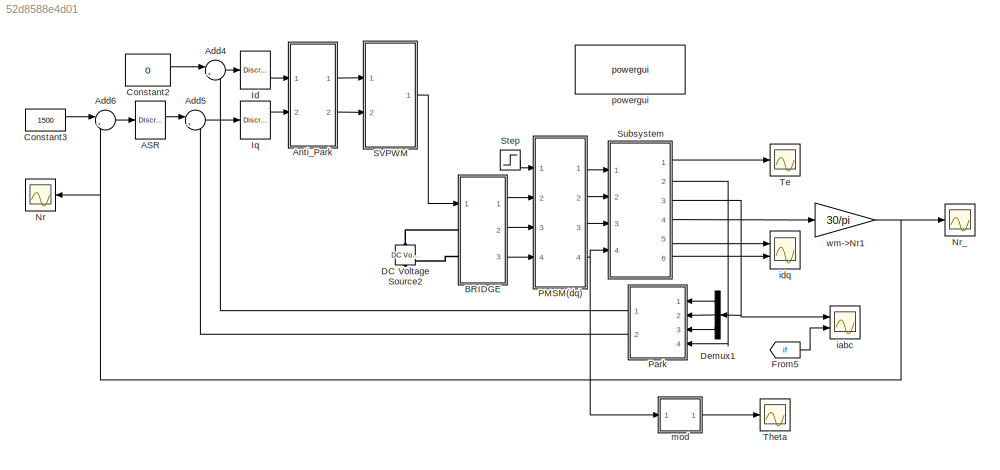
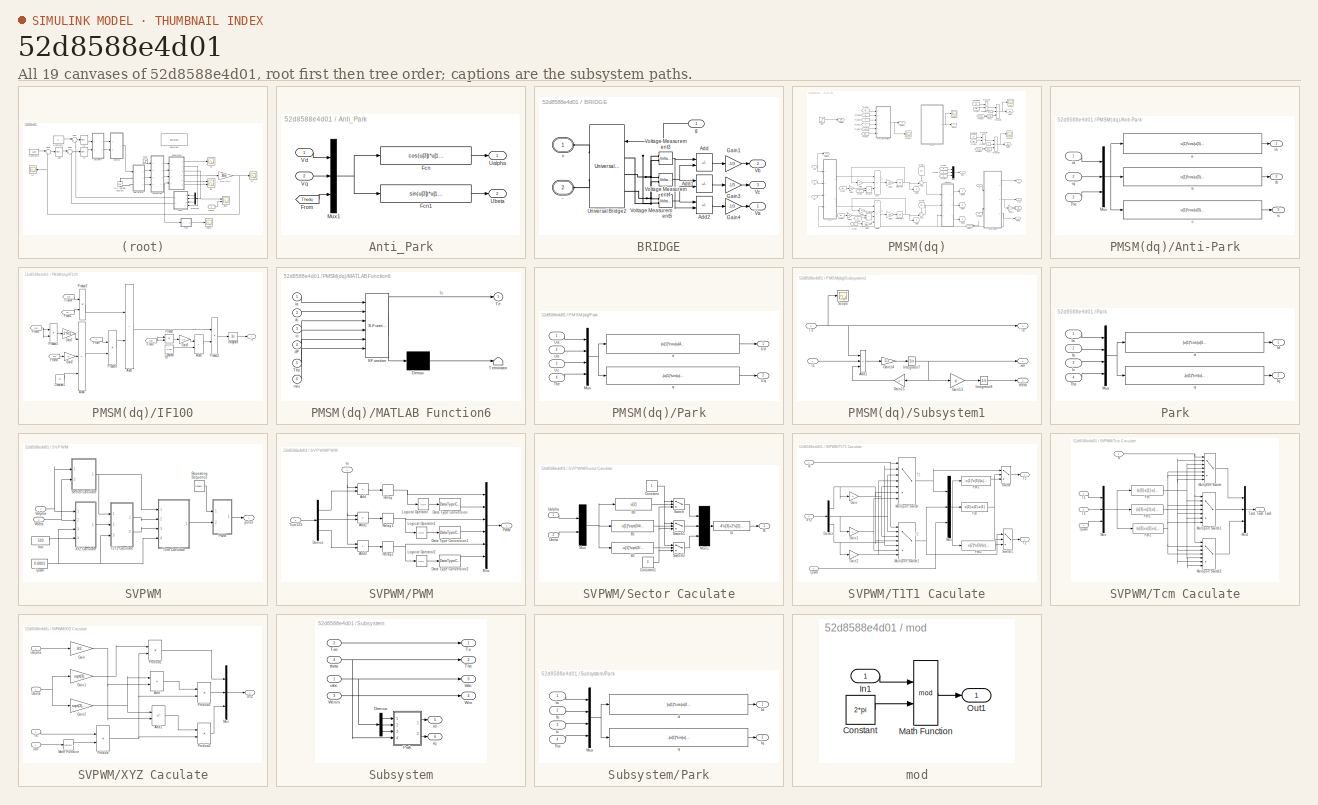
[diagram: thumbnail index - all 19 canvases of the model, root first then tree order]
MODEL slx_52d8588e4d01
KIND model
CONFIG AbsTol = auto
CONFIG EnableMultiTasking = off
CONFIG FixedStep = auto
CONFIG InitFcn = clc\np=2;\nR=3.45;\nLd=9.5e-3;\nLq=12e-3;\nflux=0.55;\nB=0;\nJ=0.0052;\n\nL=(Ld+Lq)/2;\nM=0.5e-3;\n\nRf=0.5;\n\nTL=1e-6;\n\nTs=1e-6;
CONFIG MaxStep = auto
CONFIG MinStep = auto
CONFIG RelTol = 1e-3
CONFIG SampleTimeConstraint = Unconstrained
CONFIG SolverName = VariableStepAuto
CONFIG StartTime = 0.0
CONFIG StopTime = 0.4
BLOCK [Reference] ASR  REF=powerlib_extras/Discrete 
Control Blocks/Discrete
PI Controller
  Ports = [1, 1]
  SourceBlock = powerlib_extras/Discrete \nControl Blocks/Discrete\nPI Controller
  SourceType = Discrete PI Controller
BLOCK [Sum] Add4
  Inputs = |+-
  Ports = [2, 1]
BLOCK [Sum] Add5
  Inputs = |+-
  Ports = [2, 1]
BLOCK [Sum] Add6
  Inputs = |+-
  Ports = [2, 1]
BLOCK [SubSystem] Anti_Park
  Ports = [2, 2]
BLOCK [Fcn] Anti_Park/Fcn
  Expr = cos(u[3])*u[1]-sin(u[3])*u[2]
BLOCK [Fcn] Anti_Park/Fcn1
  Expr = sin(u[3])*u[1]+cos(u[3])*u[2]
BLOCK [From] Anti_Park/From
  GotoTag = Thedq
  TagVisibility = global
BLOCK [Mux] Anti_Park/Mux1
  DisplayOption = bar
  Inputs = 3
  Ports = [3, 1]
BLOCK [Outport] Anti_Park/Ualpha
BLOCK [Outport] Anti_Park/Ubeta
  Port = 2
BLOCK [Inport] Anti_Park/Vd
BLOCK [Inport] Anti_Park/Vq
  Port = 2
BLOCK [SubSystem] BRIDGE
  Ports = [1, 3, 0, 0, 0, 2]
BLOCK [PMIOPort] BRIDGE/+
  Side = Left
  Tag = PMCPort
BLOCK [PMIOPort] BRIDGE/-
  Port = 2
  Side = Left
  Tag = PMCPort
BLOCK [Sum] BRIDGE/Add
  IconShape = rectangular
  Inputs = +-
  Ports = [2, 1]
BLOCK [Sum] BRIDGE/Add1
  IconShape = rectangular
  Inputs = +-
  Ports = [2, 1]
BLOCK [Sum] BRIDGE/Add2
  IconShape = rectangular
  Inputs = +-
  Ports = [2, 1]
BLOCK [Gain] BRIDGE/Gain1
  Gain = -1/3
BLOCK [Gain] BRIDGE/Gain3
  Gain = -1/3
BLOCK [Gain] BRIDGE/Gain4
  Gain = -1/3
BLOCK [Reference] BRIDGE/Universal Bridge2  REF=powerlib/Power Electronics/Universal Bridge
  Ports = [1, 0, 0, 0, 0, 3, 2]
  SourceBlock = powerlib/Power Electronics/Universal Bridge
  SourceType = Universal Bridge
BLOCK [Outport] BRIDGE/Va
BLOCK [Outport] BRIDGE/Vb
  Port = 2
BLOCK [Outport] BRIDGE/Vc
  Port = 3
BLOCK [Reference] BRIDGE/Voltage Measurement3  REF=powerlib/Measurements/Voltage Measurement
  Ports = [0, 1, 0, 0, 0, 2]
  SourceBlock = powerlib/Measurements/Voltage Measurement
  SourceType = Voltage Measurement
BLOCK [Reference] BRIDGE/Voltage Measurement4  REF=powerlib/Measurements/Voltage Measurement
  Ports = [0, 1, 0, 0, 0, 2]
  SourceBlock = powerlib/Measurements/Voltage Measurement
  SourceType = Voltage Measurement
BLOCK [Reference] BRIDGE/Voltage Measurement5  REF=powerlib/Measurements/Voltage Measurement
  Ports = [0, 1, 0, 0, 0, 2]
  SourceBlock = powerlib/Measurements/Voltage Measurement
  SourceType = Voltage Measurement
BLOCK [Inport] BRIDGE/g
BLOCK [Constant] Constant2
  Value = 0
BLOCK [Constant] Constant3
  Value = 1500
BLOCK [Reference] DC Voltage Source2  REF=powerlib/Electrical Sources/DC Voltage Source
  NameLocation = right
  Ports = [0, 0, 0, 0, 0, 1, 1]
  SourceBlock = powerlib/Electrical Sources/DC Voltage Source
  SourceType = DC Voltage Source
BLOCK [Demux] Demux1
  Outputs = 3
  Ports = [1, 3]
BLOCK [From] From5
  GotoTag = if
  TagVisibility = global
BLOCK [Reference] Id  REF=powerlib_extras/Discrete 
Control Blocks/Discrete
PI Controller
  Ports = [1, 1]
  SourceBlock = powerlib_extras/Discrete \nControl Blocks/Discrete\nPI Controller
  SourceType = Discrete PI Controller
BLOCK [Reference] Iq  REF=powerlib_extras/Discrete 
Control Blocks/Discrete
PI Controller
  Ports = [1, 1]
  SourceBlock = powerlib_extras/Discrete \nControl Blocks/Discrete\nPI Controller
  SourceType = Discrete PI Controller
BLOCK [Scope] Nr
  Floating = off
  NumInputPorts = 1
  Ports = [1]
  ScopeSpecificationString = Simulink.scopes.TimeScopeBlockCfg('CurrentConfiguration', extmgr.ConfigurationSet(extmgr.Configuration('Core','General UI',true),extmgr.Configuration('Core','Source UI',true),extmgr.Configuration('Sources','WiredSimulink',true,'DataLogging',true,'DataLoggingVariableName','ScopeData4','DataLoggingSaveFormat','StructureWithTime','DataLoggingDecimation','1','DataLoggingDecimateData',true),extmgr.Conf...<+1876ch>
BLOCK [Scope] Nr_
  Floating = off
  NumInputPorts = 1
  Ports = [1]
  ScopeSpecificationString = Simulink.scopes.TimeScopeBlockCfg('CurrentConfiguration', extmgr.ConfigurationSet(extmgr.Configuration('Core','General UI',true),extmgr.Configuration('Core','Source UI',true),extmgr.Configuration('Sources','WiredSimulink',true,'DataLogging',true,'DataLoggingVariableName','ScopeData2','DataLoggingSaveFormat','StructureWithTime','DataLoggingDecimation','1','DataLoggingDecimateData',true),extmgr.Conf...<+1811ch>
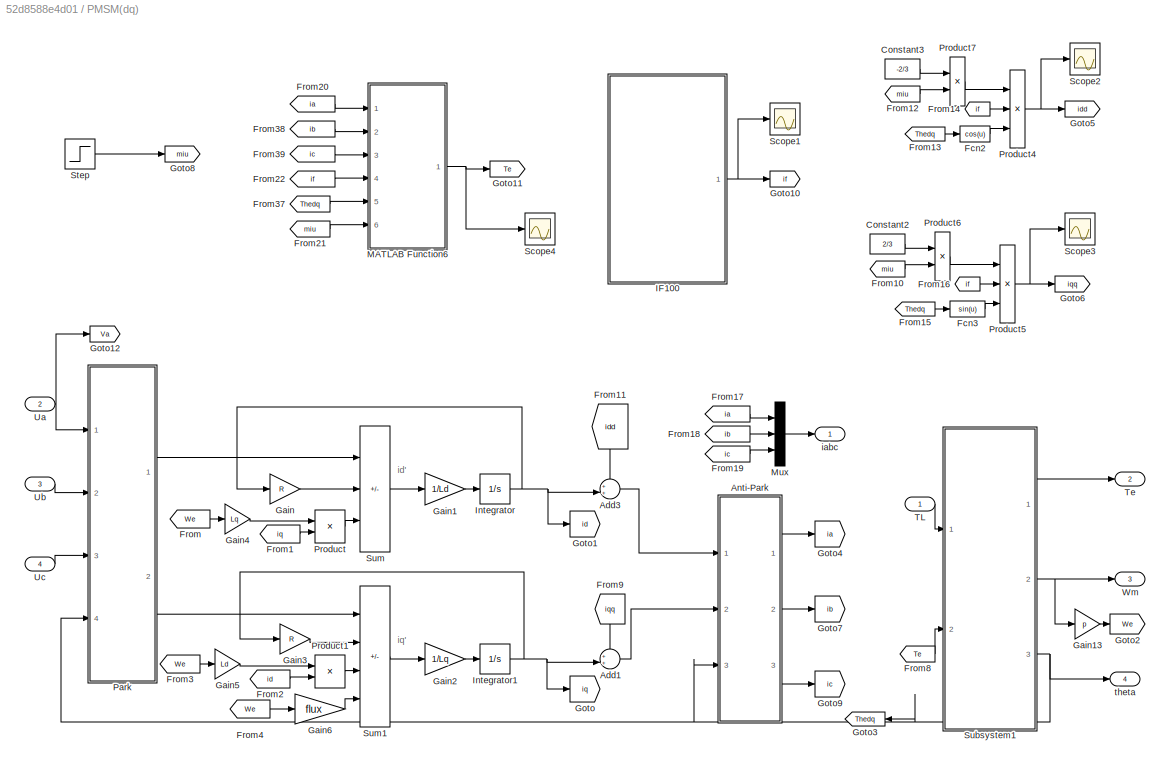
BLOCK [SubSystem] PMSM(dq)
  Ports = [4, 4]
BLOCK [Sum] PMSM(dq)/Add1
  Inputs = ++|
  Ports = [2, 1]
BLOCK [Sum] PMSM(dq)/Add3
  Inputs = ++|
  Ports = [2, 1]
BLOCK [SubSystem] PMSM(dq)/Anti-Park
  Ports = [3, 3]
BLOCK [Mux] PMSM(dq)/Anti-Park/Mux
  DisplayOption = bar
  Inputs = 3
  Ports = [3, 1]
BLOCK [Inport] PMSM(dq)/Anti-Park/The
  Port = 3
BLOCK [Fcn] PMSM(dq)/Anti-Park/a
  Expr = u(1)*cos(u(3))-u(2)*sin(u(3))
BLOCK [Fcn] PMSM(dq)/Anti-Park/b
  Expr = u(1)*cos(u(3)-2/3*pi)-u(2)*sin(u(3)-2/3*pi)
BLOCK [Fcn] PMSM(dq)/Anti-Park/c
  Expr = u(1)*cos(u(3)+2/3*pi)-u(2)*sin(u(3)+2/3*pi)
BLOCK [Outport] PMSM(dq)/Anti-Park/ia
BLOCK [Outport] PMSM(dq)/Anti-Park/ib
  Port = 2
BLOCK [Outport] PMSM(dq)/Anti-Park/ic
  Port = 3
BLOCK [Inport] PMSM(dq)/Anti-Park/id
BLOCK [Inport] PMSM(dq)/Anti-Park/iq
  Port = 2
BLOCK [Constant] PMSM(dq)/Constant2
  Value = 2/3
BLOCK [Constant] PMSM(dq)/Constant3
  Value = -2/3
BLOCK [Fcn] PMSM(dq)/Fcn2
  Expr = cos(u)
BLOCK [Fcn] PMSM(dq)/Fcn3
  Expr = sin(u)
BLOCK [From] PMSM(dq)/From
  GotoTag = We
  TagVisibility = global
BLOCK [From] PMSM(dq)/From1
  GotoTag = iq
  TagVisibility = global
BLOCK [From] PMSM(dq)/From10
  GotoTag = miu
  TagVisibility = global
BLOCK [From] PMSM(dq)/From11
  GotoTag = idd
  NameLocation = left
BLOCK [From] PMSM(dq)/From12
  GotoTag = miu
  TagVisibility = global
BLOCK [From] PMSM(dq)/From13
  GotoTag = Thedq
  TagVisibility = global
BLOCK [From] PMSM(dq)/From14
  GotoTag = if
  TagVisibility = global
BLOCK [From] PMSM(dq)/From15
  GotoTag = Thedq
  TagVisibility = global
BLOCK [From] PMSM(dq)/From16
  GotoTag = if
  TagVisibility = global
BLOCK [From] PMSM(dq)/From17
  GotoTag = ia
  TagVisibility = global
BLOCK [From] PMSM(dq)/From18
  GotoTag = ib
  TagVisibility = global
BLOCK [From] PMSM(dq)/From19
  GotoTag = ic
  TagVisibility = global
BLOCK [From] PMSM(dq)/From2
  GotoTag = id
  TagVisibility = global
BLOCK [From] PMSM(dq)/From20
  GotoTag = ia
  TagVisibility = global
BLOCK [From] PMSM(dq)/From21
  GotoTag = miu
  TagVisibility = global
BLOCK [From] PMSM(dq)/From22
  GotoTag = if
  TagVisibility = global
BLOCK [From] PMSM(dq)/From3
  GotoTag = We
  TagVisibility = global
BLOCK [From] PMSM(dq)/From37
  GotoTag = Thedq
  TagVisibility = global
BLOCK [From] PMSM(dq)/From38
  GotoTag = ib
  TagVisibility = global
BLOCK [From] PMSM(dq)/From39
  GotoTag = ic
  TagVisibility = global
BLOCK [From] PMSM(dq)/From4
  GotoTag = We
  TagVisibility = global
BLOCK [From] PMSM(dq)/From8
  GotoTag = Te
  TagVisibility = global
BLOCK [From] PMSM(dq)/From9
  GotoTag = iqq
  NameLocation = left
BLOCK [Gain] PMSM(dq)/Gain
  Gain = R
BLOCK [Gain] PMSM(dq)/Gain1
  Gain = 1/Ld
BLOCK [Gain] PMSM(dq)/Gain13
  Gain = p
BLOCK [Gain] PMSM(dq)/Gain2
  Gain = 1/Lq
BLOCK [Gain] PMSM(dq)/Gain3
  Gain = R
BLOCK [Gain] PMSM(dq)/Gain4
  Gain = Lq
BLOCK [Gain] PMSM(dq)/Gain5
  Gain = Ld
BLOCK [Gain] PMSM(dq)/Gain6
  Gain = flux
BLOCK [Goto] PMSM(dq)/Goto
  GotoTag = iq
  TagVisibility = global
BLOCK [Goto] PMSM(dq)/Goto1
  GotoTag = id
  TagVisibility = global
BLOCK [Goto] PMSM(dq)/Goto10
  GotoTag = if
  TagVisibility = global
BLOCK [Goto] PMSM(dq)/Goto11
  GotoTag = Te
  TagVisibility = global
BLOCK [Goto] PMSM(dq)/Goto12
  GotoTag = Va
  TagVisibility = global
BLOCK [Goto] PMSM(dq)/Goto2
  GotoTag = We
  TagVisibility = global
BLOCK [Goto] PMSM(dq)/Goto3
  GotoTag = Thedq
  TagVisibility = global
BLOCK [Goto] PMSM(dq)/Goto4
  GotoTag = ia
  TagVisibility = global
BLOCK [Goto] PMSM(dq)/Goto5
  GotoTag = idd
BLOCK [Goto] PMSM(dq)/Goto6
  GotoTag = iqq
BLOCK [Goto] PMSM(dq)/Goto7
  GotoTag = ib
  TagVisibility = global
BLOCK [Goto] PMSM(dq)/Goto8
  GotoTag = miu
  TagVisibility = global
BLOCK [Goto] PMSM(dq)/Goto9
  GotoTag = ic
  TagVisibility = global
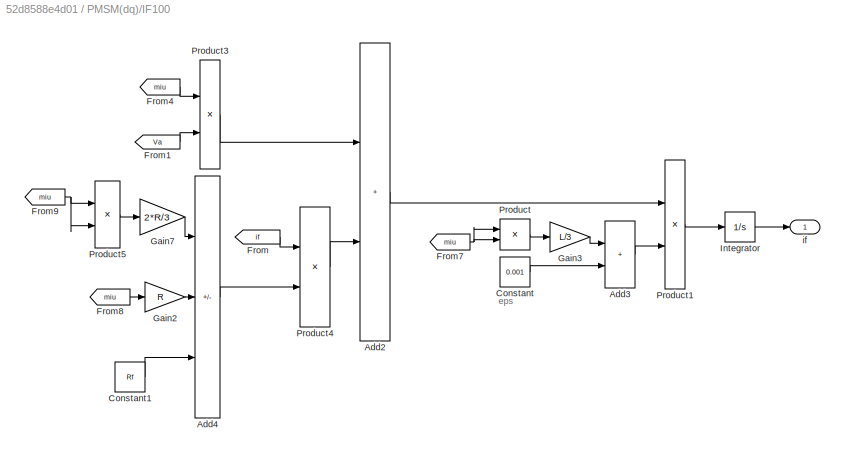
BLOCK [SubSystem] PMSM(dq)/IF100
  Ports = [0, 1]
BLOCK [Sum] PMSM(dq)/IF100/Add2
  IconShape = rectangular
  Ports = [2, 1]
BLOCK [Sum] PMSM(dq)/IF100/Add3
  IconShape = rectangular
  Ports = [2, 1]
BLOCK [Sum] PMSM(dq)/IF100/Add4
  IconShape = rectangular
  Inputs = +--
  Ports = [3, 1]
BLOCK [Constant] PMSM(dq)/IF100/Constant
  Value = 0.001
BLOCK [Constant] PMSM(dq)/IF100/Constant1
  Value = Rf
BLOCK [From] PMSM(dq)/IF100/From
  GotoTag = if
  TagVisibility = global
BLOCK [From] PMSM(dq)/IF100/From1
  GotoTag = Va
  TagVisibility = global
BLOCK [From] PMSM(dq)/IF100/From4
  GotoTag = miu
  TagVisibility = global
BLOCK [From] PMSM(dq)/IF100/From7
  GotoTag = miu
  TagVisibility = global
BLOCK [From] PMSM(dq)/IF100/From8
  GotoTag = miu
  TagVisibility = global
BLOCK [From] PMSM(dq)/IF100/From9
  GotoTag = miu
  TagVisibility = global
BLOCK [Gain] PMSM(dq)/IF100/Gain2
  Gain = R
BLOCK [Gain] PMSM(dq)/IF100/Gain3
  Gain = L/3
BLOCK [Gain] PMSM(dq)/IF100/Gain7
  Gain = 2*R/3
BLOCK [Integrator] PMSM(dq)/IF100/Integrator
  InitialCondition = 0.2
  Ports = [1, 1]
BLOCK [Product] PMSM(dq)/IF100/Product
  Ports = [2, 1]
BLOCK [Product] PMSM(dq)/IF100/Product1
  Inputs = */
  Ports = [2, 1]
BLOCK [Product] PMSM(dq)/IF100/Product3
  Ports = [2, 1]
BLOCK [Product] PMSM(dq)/IF100/Product4
  Ports = [2, 1]
BLOCK [Product] PMSM(dq)/IF100/Product5
  Ports = [2, 1]
BLOCK [Outport] PMSM(dq)/IF100/if
BLOCK [Integrator] PMSM(dq)/Integrator
  Ports = [1, 1]
BLOCK [Integrator] PMSM(dq)/Integrator1
  Ports = [1, 1]
BLOCK [SubSystem] PMSM(dq)/MATLAB Function6
  ErrorFcn = Stateflow.Translate.translate
  PermitHierarchicalResolution = ExplicitOnly
  Ports = [6, 1]
  SFBlockType = MATLAB Function
  TreatAsAtomicUnit = on
BLOCK [Demux] PMSM(dq)/MATLAB Function6/ Demux 
  Outputs = 1
  Ports = [1, 1]
BLOCK [S-Function] PMSM(dq)/MATLAB Function6/ SFunction 
  EnableBusSupport = on
  FunctionName = sf_sfun
  PortCounts = [6 2]
  Ports = [6, 2]
  SFcnIsStateOwnerBlock = off
  SFunctionDeploymentMode = off
  Tag = Stateflow S-Function 1
BLOCK [Terminator] PMSM(dq)/MATLAB Function6/ Terminator 
BLOCK [Outport] PMSM(dq)/MATLAB Function6/Te
BLOCK [Inport] PMSM(dq)/MATLAB Function6/The
  Port = 5
BLOCK [Inport] PMSM(dq)/MATLAB Function6/ia
BLOCK [Inport] PMSM(dq)/MATLAB Function6/ib
  Port = 2
BLOCK [Inport] PMSM(dq)/MATLAB Function6/ic
  Port = 3
BLOCK [Inport] PMSM(dq)/MATLAB Function6/ifF
  Port = 4
BLOCK [Inport] PMSM(dq)/MATLAB Function6/miu
  Port = 6
BLOCK [Mux] PMSM(dq)/Mux
  DisplayOption = bar
  Inputs = 3
  Ports = [3, 1]
BLOCK [SubSystem] PMSM(dq)/Park
  Ports = [4, 2]
BLOCK [Mux] PMSM(dq)/Park/Mux
  DisplayOption = bar
  Ports = [4, 1]
BLOCK [Inport] PMSM(dq)/Park/The
  Port = 4
BLOCK [Inport] PMSM(dq)/Park/Ua
BLOCK [Inport] PMSM(dq)/Park/Ub
  Port = 2
BLOCK [Inport] PMSM(dq)/Park/Uc
  Port = 3
BLOCK [Outport] PMSM(dq)/Park/Ud
BLOCK [Outport] PMSM(dq)/Park/Uq
  Port = 2
BLOCK [Fcn] PMSM(dq)/Park/d
  Expr = (u(1)*cos(u(4))+u(2)*cos(u(4)-2/3*pi)+u(3)*cos(u(4)+2/3*pi))*2/3
BLOCK [Fcn] PMSM(dq)/Park/q
  Expr = -(u(1)*sin(u(4))+u(2)*sin(u(4)-2/3*pi)+u(3)*sin(u(4)+2/3*pi))*2/3
BLOCK [Product] PMSM(dq)/Product
  Ports = [2, 1]
BLOCK [Product] PMSM(dq)/Product1
  Ports = [2, 1]
BLOCK [Product] PMSM(dq)/Product4
  Inputs = 3
  Ports = [3, 1]
BLOCK [Product] PMSM(dq)/Product5
  Inputs = 3
  Ports = [3, 1]
BLOCK [Product] PMSM(dq)/Product6
  Ports = [2, 1]
BLOCK [Product] PMSM(dq)/Product7
  Ports = [2, 1]
BLOCK [Scope] PMSM(dq)/Scope1
  Floating = off
  NumInputPorts = 1
  Ports = [1]
  ScopeSpecificationString = Simulink.scopes.TimeScopeBlockCfg('CurrentConfiguration', extmgr.ConfigurationSet(extmgr.Configuration('Core','General UI',true),extmgr.Configuration('Core','Source UI',true),extmgr.Configuration('Sources','WiredSimulink',true,'DataLoggingVariableName','ScopeData2'),extmgr.Configuration('Visuals','Time Domain',true,'SerializedDisplays',{struct('MinYLimReal','-59.66501','MaxYLimReal','59.63015','YL...<+1474ch>
BLOCK [Scope] PMSM(dq)/Scope2
  Floating = off
  NumInputPorts = 1
  Ports = [1]
  ScopeSpecificationString = Simulink.scopes.TimeScopeBlockCfg('CurrentConfiguration', extmgr.ConfigurationSet(extmgr.Configuration('Core','General UI',true),extmgr.Configuration('Core','Source UI',true),extmgr.Configuration('Sources','WiredSimulink',true,'DataLoggingVariableName','ScopeData5'),extmgr.Configuration('Visuals','Time Domain',true,'SerializedDisplays',{struct('MinYLimReal','-1.18963','MaxYLimReal','0.98001','YLab...<+1421ch>
BLOCK [Scope] PMSM(dq)/Scope3
  Floating = off
  NumInputPorts = 1
  Ports = [1]
  ScopeSpecificationString = Simulink.scopes.TimeScopeBlockCfg('CurrentConfiguration', extmgr.ConfigurationSet(extmgr.Configuration('Core','General UI',true),extmgr.Configuration('Core','Source UI',true),extmgr.Configuration('Sources','WiredSimulink',true,'DataLoggingVariableName','ScopeData6'),extmgr.Configuration('Visuals','Time Domain',true,'SerializedDisplays',{struct('MinYLimReal','-11.15951','MaxYLimReal','2.2818','YLab...<+1475ch>
BLOCK [Scope] PMSM(dq)/Scope4
  Floating = off
  NumInputPorts = 1
  Ports = [1]
  ScopeSpecificationString = Simulink.scopes.TimeScopeBlockCfg('CurrentConfiguration', extmgr.ConfigurationSet(extmgr.Configuration('Core','General UI',true),extmgr.Configuration('Core','Source UI',true),extmgr.Configuration('Sources','WiredSimulink',true,'DataLoggingVariableName','ScopeData1'),extmgr.Configuration('Visuals','Time Domain',true,'SerializedDisplays',{struct('MinYLimReal','-59.66501','MaxYLimReal','59.63015','YL...<+1486ch>
BLOCK [Step] PMSM(dq)/Step
  After = 0.12
  SampleTime = 0
  Time = 0.2
BLOCK [SubSystem] PMSM(dq)/Subsystem1
  Ports = [2, 3]
BLOCK [Sum] PMSM(dq)/Subsystem1/Add1
  IconShape = rectangular
  Inputs = +--
  Ports = [3, 1]
BLOCK [Gain] PMSM(dq)/Subsystem1/Gain13
  Gain = p
BLOCK [Gain] PMSM(dq)/Subsystem1/Gain14
  Gain = 1/J
BLOCK [Gain] PMSM(dq)/Subsystem1/Gain15
  Gain = B
  NameLocation = top
BLOCK [Integrator] PMSM(dq)/Subsystem1/Integrator7
  Ports = [1, 1]
BLOCK [Integrator] PMSM(dq)/Subsystem1/Integrator8
  Ports = [1, 1]
BLOCK [Scope] PMSM(dq)/Subsystem1/Scope
  Floating = off
  NumInputPorts = 1
  Ports = [1]
  ScopeSpecificationString = Simulink.scopes.TimeScopeBlockCfg('CurrentConfiguration', extmgr.ConfigurationSet(extmgr.Configuration('Core','General UI',true),extmgr.Configuration('Core','Source UI',true),extmgr.Configuration('Sources','WiredSimulink',true,'DataLoggingVariableName','ScopeData1'),extmgr.Configuration('Visuals','Time Domain',true,'SerializedDisplays',{struct('MinYLimReal','-9.7704','MaxYLimReal','60.01418','YLab...<+1432ch>
BLOCK [Inport] PMSM(dq)/Subsystem1/T e
  Port = 2
BLOCK [Inport] PMSM(dq)/Subsystem1/TL
BLOCK [Outport] PMSM(dq)/Subsystem1/Te
BLOCK [Outport] PMSM(dq)/Subsystem1/theta
  Port = 3
BLOCK [Outport] PMSM(dq)/Subsystem1/wm
  Port = 2
BLOCK [Sum] PMSM(dq)/Sum
  IconShape = rectangular
  Inputs = +-+
  Ports = [3, 1]
BLOCK [Sum] PMSM(dq)/Sum1
  IconShape = rectangular
  Inputs = +---
  Ports = [4, 1]
BLOCK [Inport] PMSM(dq)/TL 
BLOCK [Outport] PMSM(dq)/Te
  Port = 2
BLOCK [Inport] PMSM(dq)/Ua
  Port = 2
BLOCK [Inport] PMSM(dq)/Ub
  Port = 3
BLOCK [Inport] PMSM(dq)/Uc
  Port = 4
BLOCK [Outport] PMSM(dq)/Wm
  Port = 3
BLOCK [Outport] PMSM(dq)/iabc
BLOCK [Outport] PMSM(dq)/theta
  Port = 4
BLOCK [SubSystem] Park
  Ports = [4, 2]
BLOCK [Inport] Park/Ia
BLOCK [Inport] Park/Ib
  Port = 2
BLOCK [Inport] Park/Ic
  Port = 3
BLOCK [Outport] Park/Id
BLOCK [Outport] Park/Iq
  Port = 2
BLOCK [Mux] Park/Mux
  DisplayOption = bar
  Ports = [4, 1]
BLOCK [Inport] Park/The
  Port = 4
BLOCK [Fcn] Park/d
  Expr = (u(1)*cos(u(4))+u(2)*cos(u(4)-2/3*pi)+u(3)*cos(u(4)+2/3*pi))*2/3
BLOCK [Fcn] Park/q
  Expr = -(u(1)*sin(u(4))+u(2)*sin(u(4)-2/3*pi)+u(3)*sin(u(4)+2/3*pi))*2/3
BLOCK [SubSystem] SVPWM
  Ports = [2, 1]
BLOCK [SubSystem] SVPWM/PWM
  Ports = [2, 1]
BLOCK [Sum] SVPWM/PWM/Add
  IconShape = rectangular
  Inputs = +-
  Ports = [2, 1]
BLOCK [Sum] SVPWM/PWM/Add1
  IconShape = rectangular
  Inputs = +-
  Ports = [2, 1]
BLOCK [Sum] SVPWM/PWM/Add2
  IconShape = rectangular
  Inputs = +-
  Ports = [2, 1]
BLOCK [DataTypeConversion] SVPWM/PWM/Data Type Conversion
  OutDataTypeStr = double
  RndMeth = Floor
  SaturateOnIntegerOverflow = off
BLOCK [DataTypeConversion] SVPWM/PWM/Data Type Conversion1
  OutDataTypeStr = double
  RndMeth = Floor
  SaturateOnIntegerOverflow = off
BLOCK [DataTypeConversion] SVPWM/PWM/Data Type Conversion2
  OutDataTypeStr = double
  RndMeth = Floor
  SaturateOnIntegerOverflow = off
BLOCK [Demux] SVPWM/PWM/Demux
  Outputs = 3
  Ports = [1, 3]
BLOCK [Inport] SVPWM/PWM/In
  NameLocation = right
BLOCK [Logic] SVPWM/PWM/Logical Operator
  AllPortsSameDT = off
  Operator = NOT
  OutDataTypeStr = boolean
  Ports = [1, 1]
BLOCK [Logic] SVPWM/PWM/Logical Operator1
  AllPortsSameDT = off
  Operator = NOT
  OutDataTypeStr = boolean
  Ports = [1, 1]
BLOCK [Logic] SVPWM/PWM/Logical Operator2
  AllPortsSameDT = off
  Operator = NOT
  OutDataTypeStr = boolean
  Ports = [1, 1]
BLOCK [Mux] SVPWM/PWM/Mux
  DisplayOption = bar
  Inputs = 6
  Ports = [6, 1]
BLOCK [Outport] SVPWM/PWM/PWM
BLOCK [Relay] SVPWM/PWM/Relay
  OffSwitchValue = -eps
BLOCK [Relay] SVPWM/PWM/Relay1
  OffSwitchValue = -eps
BLOCK [Relay] SVPWM/PWM/Relay2
  OffSwitchValue = -eps
BLOCK [Inport] SVPWM/PWM/Tcm123
  Port = 2
BLOCK [Reference] SVPWM/Repeating Sequence  REF=simulink/Sources/Repeating
Sequence
  Ports = [0, 1]
  SourceBlock = simulink/Sources/Repeating\nSequence
  SourceType = Repeating table
BLOCK [SubSystem] SVPWM/Sector Caculate
  Ports = [2, 1]
BLOCK [Fcn] SVPWM/Sector Caculate/B0
  Expr = u[2]
BLOCK [Fcn] SVPWM/Sector Caculate/B1
  Expr = u[1]*sqrt(3/4)-0.5*u[2]
BLOCK [Fcn] SVPWM/Sector Caculate/B2
  Expr = -u[1]*sqrt(3/4)-u[2]*0.5
BLOCK [Constant] SVPWM/Sector Caculate/Constant
BLOCK [Constant] SVPWM/Sector Caculate/Constant1
  Value = 0
BLOCK [Mux] SVPWM/Sector Caculate/Mux
  Inputs = 2
  Ports = [2, 1]
BLOCK [Mux] SVPWM/Sector Caculate/Mux1
  Inputs = 3
  Ports = [3, 1]
BLOCK [Fcn] SVPWM/Sector Caculate/N
  Expr = 4*u[3]+2*u[2]+u[1]
BLOCK [Outport] SVPWM/Sector Caculate/N 
BLOCK [Switch] SVPWM/Sector Caculate/Switch
  InputSameDT = off
  SaturateOnIntegerOverflow = off
BLOCK [Switch] SVPWM/Sector Caculate/Switch1
  InputSameDT = off
  SaturateOnIntegerOverflow = off
BLOCK [Switch] SVPWM/Sector Caculate/Switch2
  InputSameDT = off
  SaturateOnIntegerOverflow = off
BLOCK [Inport] SVPWM/Sector Caculate/Ualpha
BLOCK [Inport] SVPWM/Sector Caculate/Ubeta
  Port = 2
BLOCK [SubSystem] SVPWM/T1T1 Caculate
  Ports = [3, 2]
BLOCK [Demux] SVPWM/T1T1 Caculate/Demux
  Outputs = 3
  Ports = [1, 3]
BLOCK [Fcn] SVPWM/T1T1 Caculate/Fcn
  Expr = u(3)-u(2)-u(1)
BLOCK [Fcn] SVPWM/T1T1 Caculate/Fcn1
  Expr = u(1)*u(3)/(u(1)+u(2))
BLOCK [Fcn] SVPWM/T1T1 Caculate/Fcn2
  Expr = u(2)*u(3)/(u(1)+u(2))
BLOCK [Gain] SVPWM/T1T1 Caculate/Gain
  Gain = -1
BLOCK [Gain] SVPWM/T1T1 Caculate/Gain1
  Gain = -1
BLOCK [Gain] SVPWM/T1T1 Caculate/Gain2
  Gain = -1
BLOCK [MultiPortSwitch] SVPWM/T1T1 Caculate/Multiport Switch
  InputSameDT = off
  Inputs = 6
  Ports = [7, 1]
  SaturateOnIntegerOverflow = off
BLOCK [MultiPortSwitch] SVPWM/T1T1 Caculate/Multiport Switch1
  InputSameDT = off
  Inputs = 6
  Ports = [7, 1]
  SaturateOnIntegerOverflow = off
BLOCK [Mux] SVPWM/T1T1 Caculate/Mux
  DisplayOption = bar
  Inputs = 3
  Ports = [3, 1]
BLOCK [Inport] SVPWM/T1T1 Caculate/N
BLOCK [Switch] SVPWM/T1T1 Caculate/Switch
  InputSameDT = off
  SaturateOnIntegerOverflow = off
BLOCK [Switch] SVPWM/T1T1 Caculate/Switch1
  Criteria = u2 > Threshold
  InputSameDT = off
  SaturateOnIntegerOverflow = off
BLOCK [Outport] SVPWM/T1T1 Caculate/T1
BLOCK [Outport] SVPWM/T1T1 Caculate/T2
  Port = 2
BLOCK [Inport] SVPWM/T1T1 Caculate/Tpwm
  Port = 3
BLOCK [Inport] SVPWM/T1T1 Caculate/XYZ
  Port = 2
BLOCK [SubSystem] SVPWM/Tcm Caculate
  Ports = [4, 1]
BLOCK [Fcn] SVPWM/Tcm Caculate/Fcn
  Expr = (u[3]-u[1]-u[2])/4
BLOCK [Fcn] SVPWM/Tcm Caculate/Fcn1
  Expr = (u[3]+u[1]-u[2])/4
BLOCK [Fcn] SVPWM/Tcm Caculate/Fcn2
  Expr = (u[3]+u[2]+u[1])/4
BLOCK [MultiPortSwitch] SVPWM/Tcm Caculate/Multiport Switch
  InputSameDT = off
  Inputs = 6
  Ports = [7, 1]
  SaturateOnIntegerOverflow = off
BLOCK [MultiPortSwitch] SVPWM/Tcm Caculate/Multiport Switch1
  InputSameDT = off
  Inputs = 6
  Ports = [7, 1]
  SaturateOnIntegerOverflow = off
BLOCK [MultiPortSwitch] SVPWM/Tcm Caculate/Multiport Switch2
  InputSameDT = off
  Inputs = 6
  Ports = [7, 1]
  SaturateOnIntegerOverflow = off
BLOCK [Mux] SVPWM/Tcm Caculate/Mux
  DisplayOption = bar
  Inputs = 3
  Ports = [3, 1]
BLOCK [Mux] SVPWM/Tcm Caculate/Mux1
  DisplayOption = bar
  Inputs = 3
  Ports = [3, 1]
BLOCK [Inport] SVPWM/Tcm Caculate/N
BLOCK [Inport] SVPWM/Tcm Caculate/T1
  Port = 2
BLOCK [Inport] SVPWM/Tcm Caculate/T2
  Port = 3
BLOCK [Outport] SVPWM/Tcm Caculate/Tcm1 Tcm2 Tcm3
BLOCK [Inport] SVPWM/Tcm Caculate/Tpwm
  Port = 4
BLOCK [Constant] SVPWM/Tpwm
  Value = 0.0001
BLOCK [Inport] SVPWM/Valpha
BLOCK [Inport] SVPWM/Vbeta
  Port = 2
BLOCK [Constant] SVPWM/Vdc
  Value = 500
BLOCK [SubSystem] SVPWM/XYZ Caculate
  Ports = [4, 1]
BLOCK [Sum] SVPWM/XYZ Caculate/Add
  IconShape = rectangular
  Ports = [2, 1]
BLOCK [Sum] SVPWM/XYZ Caculate/Add1
  IconShape = rectangular
  Inputs = +-
  Ports = [2, 1]
BLOCK [Gain] SVPWM/XYZ Caculate/Gain
  Gain = 3/2
BLOCK [Gain] SVPWM/XYZ Caculate/Gain1
  Gain = sqrt(3)
BLOCK [Gain] SVPWM/XYZ Caculate/Gain2
  Gain = sqrt(3)/2
BLOCK [Math] SVPWM/XYZ Caculate/Math Function
  Operator = reciprocal
  Ports = [1, 1]
  SignedPower = on
BLOCK [Mux] SVPWM/XYZ Caculate/Mux
  DisplayOption = bar
  Inputs = 3
  Ports = [3, 1]
BLOCK [Product] SVPWM/XYZ Caculate/Product
  Ports = [2, 1]
  RndMeth = Zero
BLOCK [Product] SVPWM/XYZ Caculate/Product1
  Ports = [2, 1]
  RndMeth = Zero
BLOCK [Product] SVPWM/XYZ Caculate/Product2
  Ports = [2, 1]
  RndMeth = Zero
BLOCK [Product] SVPWM/XYZ Caculate/Product3
  Ports = [2, 1]
  RndMeth = Zero
BLOCK [Inport] SVPWM/XYZ Caculate/Ts
  Port = 3
BLOCK [Inport] SVPWM/XYZ Caculate/Ualpha
BLOCK [Inport] SVPWM/XYZ Caculate/Ubeta
  Port = 2
BLOCK [Inport] SVPWM/XYZ Caculate/Udc
  Port = 4
BLOCK [Outport] SVPWM/XYZ Caculate/XYZ
BLOCK [Outport] SVPWM/pulse
BLOCK [Step] Step
  After = 20
  Before = 2
  SampleTime = 0
  Time = 0.1
BLOCK [SubSystem] Subsystem
  Ports = [4, 6]
BLOCK [Demux] Subsystem/Demux
  Outputs = 3
  Ports = [1, 3]
BLOCK [Outport] Subsystem/Iabc
  Port = 3
BLOCK [SubSystem] Subsystem/Park
  Ports = [4, 2]
BLOCK [Inport] Subsystem/Park/Ia
BLOCK [Inport] Subsystem/Park/Ib
  Port = 2
BLOCK [Inport] Subsystem/Park/Ic
  Port = 3
BLOCK [Outport] Subsystem/Park/Id
BLOCK [Outport] Subsystem/Park/Iq
  Port = 2
BLOCK [Mux] Subsystem/Park/Mux
  DisplayOption = bar
  Ports = [4, 1]
BLOCK [Inport] Subsystem/Park/The
  Port = 4
BLOCK [Fcn] Subsystem/Park/d
  Expr = (u(1)*cos(u(4))+u(2)*cos(u(4)-2/3*pi)+u(3)*cos(u(4)+2/3*pi))*2/3
BLOCK [Fcn] Subsystem/Park/q
  Expr = -(u(1)*sin(u(4))+u(2)*sin(u(4)-2/3*pi)+u(3)*sin(u(4)+2/3*pi))*2/3
BLOCK [Outport] Subsystem/Te
BLOCK [Inport] Subsystem/Tee
  Port = 2
BLOCK [Outport] Subsystem/The
  Port = 2
BLOCK [Outport] Subsystem/Wm
  Port = 4
BLOCK [Inport] Subsystem/Wmm
  Port = 3
BLOCK [Inport] Subsystem/iabc
BLOCK [Outport] Subsystem/id
  Port = 5
BLOCK [Outport] Subsystem/iq
  Port = 6
BLOCK [Inport] Subsystem/theta
  Port = 4
BLOCK [Scope] Te
  Floating = off
  NumInputPorts = 1
  Ports = [1]
  ScopeSpecificationString = Simulink.scopes.TimeScopeBlockCfg('CurrentConfiguration', extmgr.ConfigurationSet(extmgr.Configuration('Core','General UI',true,'FigureColor',[1 1 1]),extmgr.Configuration('Core','Source UI',true),extmgr.Configuration('Sources','WiredSimulink',true,'DataLoggingVariableName','ScopeData5'),extmgr.Configuration('Visuals','Time Domain',true,'SerializedDisplays',{struct('MinYLimReal','-13.09994','MaxYL...<+1607ch>
BLOCK [Scope] Theta
  Floating = off
  NumInputPorts = 1
  Ports = [1]
  ScopeSpecificationString = Simulink.scopes.TimeScopeBlockCfg('CurrentConfiguration', extmgr.ConfigurationSet(extmgr.Configuration('Core','General UI',true,'FigureColor',[1 1 1]),extmgr.Configuration('Core','Source UI',true),extmgr.Configuration('Sources','WiredSimulink',true,'DataLogging',true,'DataLoggingVariableName','ScopeData1','DataLoggingSaveFormat','StructureWithTime','DataLoggingDecimation','1','DataLoggingDecimateD...<+2783ch>
BLOCK [Scope] iabc
  Floating = off
  NumInputPorts = 2
  Ports = [2]
  ScopeSpecificationString = Simulink.scopes.TimeScopeBlockCfg('CurrentConfiguration', extmgr.ConfigurationSet(extmgr.Configuration('Core','General UI',true,'FigureColor',[1 1 1]),extmgr.Configuration('Core','Source UI',true),extmgr.Configuration('Sources','WiredSimulink',true,'DataLogging',true,'DataLoggingSaveFormat','StructureWithTime','DataLoggingDecimation','1','DataLoggingDecimateData',true,'DataLoggingVariableName','Sc...<+1997ch>
BLOCK [Scope] idq
  Floating = off
  NumInputPorts = 2
  Ports = [2]
  ScopeSpecificationString = Simulink.scopes.TimeScopeBlockCfg('CurrentConfiguration', extmgr.ConfigurationSet(extmgr.Configuration('Core','General UI',true),extmgr.Configuration('Core','Source UI',true),extmgr.Configuration('Sources','WiredSimulink',true,'DataLoggingVariableName','ScopeData7'),extmgr.Configuration('Visuals','Time Domain',true,'SerializedDisplays',{struct('MinYLimReal','-5.02311','MaxYLimReal','36.17036','YLa...<+1469ch>
BLOCK [SubSystem] mod
  Ports = [1, 1]
BLOCK [Constant] mod/Constant
  Value = 2*pi
BLOCK [Inport] mod/In1
BLOCK [Math] mod/Math Function
  NameLocation = top
  Operator = mod
  Ports = [2, 1]
  SignedPower = on
BLOCK [Outport] mod/Out1
BLOCK [Reference] powergui  REF=powerlib/powergui
  Ports = []
  SourceBlock = powerlib/powergui
  SourceType = PSB option menu block
BLOCK [Gain] wm->Nr1
  Gain = 30/pi
ANNOTATION PMSM(dq): id'
ANNOTATION PMSM(dq): iq'
ANNOTATION PMSM(dq)/IF100: eps
ANNOTATION SVPWM/T1T1 Caculate: T1
ANNOTATION SVPWM/T1T1 Caculate: T2
LINE ASR:1 -> Add5:1
LINE Add4:1 -> Id:1
LINE Add5:1 -> Iq:1
LINE Add6:1 -> ASR:1
LINE Anti_Park/Fcn1:1 -> Anti_Park/Ubeta:1
LINE Anti_Park/Fcn:1 -> Anti_Park/Ualpha:1
LINE Anti_Park/From:1 -> Anti_Park/Mux1:3
NET Anti_Park/Mux1:1 -> Anti_Park/Fcn1:1, Anti_Park/Fcn:1
LINE Anti_Park/Vd:1 -> Anti_Park/Mux1:1
LINE Anti_Park/Vq:1 -> Anti_Park/Mux1:2
LINE Anti_Park:1 -> SVPWM:1
LINE Anti_Park:2 -> SVPWM:2
LINE BRIDGE/Add1:1 -> BRIDGE/Gain3:1
LINE BRIDGE/Add2:1 -> BRIDGE/Gain4:1
LINE BRIDGE/Add:1 -> BRIDGE/Gain1:1
LINE BRIDGE/Gain1:1 -> BRIDGE/Vb:1
LINE BRIDGE/Gain3:1 -> BRIDGE/Vc:1
LINE BRIDGE/Gain4:1 -> BRIDGE/Va:1
NET BRIDGE/Voltage Measurement3:1 -> BRIDGE/Add2:2, BRIDGE/Add:1
NET BRIDGE/Voltage Measurement4:1 -> BRIDGE/Add1:1, BRIDGE/Add:2
NET BRIDGE/Voltage Measurement5:1 -> BRIDGE/Add1:2, BRIDGE/Add2:1
LINE BRIDGE/g:1 -> BRIDGE/Universal Bridge2:1
LINE BRIDGE:1 -> PMSM(dq):2
LINE BRIDGE:2 -> PMSM(dq):3
LINE BRIDGE:3 -> PMSM(dq):4
LINE Constant2:1 -> Add4:1
LINE Constant3:1 -> Add6:1
LINE Demux1:1 -> Park:1
LINE Demux1:2 -> Park:2
LINE Demux1:3 -> Park:3
LINE From5:1 -> iabc:2
LINE Id:1 -> Anti_Park:1
LINE Iq:1 -> Anti_Park:2
LINE PMSM(dq)/Add1:1 -> PMSM(dq)/Anti-Park:2
LINE PMSM(dq)/Add3:1 -> PMSM(dq)/Anti-Park:1
NET PMSM(dq)/Anti-Park/Mux:1 -> PMSM(dq)/Anti-Park/a:1, PMSM(dq)/Anti-Park/b:1, PMSM(dq)/Anti-Park/c:1
LINE PMSM(dq)/Anti-Park/The:1 -> PMSM(dq)/Anti-Park/Mux:3
LINE PMSM(dq)/Anti-Park/a:1 -> PMSM(dq)/Anti-Park/ia:1
LINE PMSM(dq)/Anti-Park/b:1 -> PMSM(dq)/Anti-Park/ib:1
LINE PMSM(dq)/Anti-Park/c:1 -> PMSM(dq)/Anti-Park/ic:1
LINE PMSM(dq)/Anti-Park/id:1 -> PMSM(dq)/Anti-Park/Mux:1
LINE PMSM(dq)/Anti-Park/iq:1 -> PMSM(dq)/Anti-Park/Mux:2
LINE PMSM(dq)/Anti-Park:1 -> PMSM(dq)/Goto4:1
LINE PMSM(dq)/Anti-Park:2 -> PMSM(dq)/Goto7:1
LINE PMSM(dq)/Anti-Park:3 -> PMSM(dq)/Goto9:1
LINE PMSM(dq)/Constant2:1 -> PMSM(dq)/Product6:1
LINE PMSM(dq)/Constant3:1 -> PMSM(dq)/Product7:1
LINE PMSM(dq)/Fcn2:1 -> PMSM(dq)/Product4:3
LINE PMSM(dq)/Fcn3:1 -> PMSM(dq)/Product5:3
LINE PMSM(dq)/From10:1 -> PMSM(dq)/Product6:2
LINE PMSM(dq)/From11:1 -> PMSM(dq)/Add3:1
LINE PMSM(dq)/From12:1 -> PMSM(dq)/Product7:2
LINE PMSM(dq)/From13:1 -> PMSM(dq)/Fcn2:1
LINE PMSM(dq)/From14:1 -> PMSM(dq)/Product4:2
LINE PMSM(dq)/From15:1 -> PMSM(dq)/Fcn3:1
LINE PMSM(dq)/From16:1 -> PMSM(dq)/Product5:2
LINE PMSM(dq)/From17:1 -> PMSM(dq)/Mux:1
LINE PMSM(dq)/From18:1 -> PMSM(dq)/Mux:2
LINE PMSM(dq)/From19:1 -> PMSM(dq)/Mux:3
LINE PMSM(dq)/From1:1 -> PMSM(dq)/Product:2
LINE PMSM(dq)/From20:1 -> PMSM(dq)/MATLAB Function6:1
LINE PMSM(dq)/From21:1 -> PMSM(dq)/MATLAB Function6:6
LINE PMSM(dq)/From22:1 -> PMSM(dq)/MATLAB Function6:4
LINE PMSM(dq)/From2:1 -> PMSM(dq)/Product1:2
LINE PMSM(dq)/From37:1 -> PMSM(dq)/MATLAB Function6:5
LINE PMSM(dq)/From38:1 -> PMSM(dq)/MATLAB Function6:2
LINE PMSM(dq)/From39:1 -> PMSM(dq)/MATLAB Function6:3
LINE PMSM(dq)/From3:1 -> PMSM(dq)/Gain5:1
LINE PMSM(dq)/From4:1 -> PMSM(dq)/Gain6:1
LINE PMSM(dq)/From8:1 -> PMSM(dq)/Subsystem1:2
LINE PMSM(dq)/From9:1 -> PMSM(dq)/Add1:1
LINE PMSM(dq)/From:1 -> PMSM(dq)/Gain4:1
LINE PMSM(dq)/Gain13:1 -> PMSM(dq)/Goto2:1
LINE PMSM(dq)/Gain1:1 -> PMSM(dq)/Integrator:1
LINE PMSM(dq)/Gain2:1 -> PMSM(dq)/Integrator1:1
LINE PMSM(dq)/Gain3:1 -> PMSM(dq)/Sum1:2
LINE PMSM(dq)/Gain4:1 -> PMSM(dq)/Product:1
LINE PMSM(dq)/Gain5:1 -> PMSM(dq)/Product1:1
LINE PMSM(dq)/Gain6:1 -> PMSM(dq)/Sum1:4
LINE PMSM(dq)/Gain:1 -> PMSM(dq)/Sum:2
LINE PMSM(dq)/IF100/Add2:1 -> PMSM(dq)/IF100/Product1:1
LINE PMSM(dq)/IF100/Add3:1 -> PMSM(dq)/IF100/Product1:2
LINE PMSM(dq)/IF100/Add4:1 -> PMSM(dq)/IF100/Product4:2
LINE PMSM(dq)/IF100/Constant1:1 -> PMSM(dq)/IF100/Add4:3
LINE PMSM(dq)/IF100/Constant:1 -> PMSM(dq)/IF100/Add3:2
LINE PMSM(dq)/IF100/From1:1 -> PMSM(dq)/IF100/Product3:2
LINE PMSM(dq)/IF100/From4:1 -> PMSM(dq)/IF100/Product3:1
NET PMSM(dq)/IF100/From7:1 -> PMSM(dq)/IF100/Product:1, PMSM(dq)/IF100/Product:2
LINE PMSM(dq)/IF100/From8:1 -> PMSM(dq)/IF100/Gain2:1
NET PMSM(dq)/IF100/From9:1 -> PMSM(dq)/IF100/Product5:1, PMSM(dq)/IF100/Product5:2
LINE PMSM(dq)/IF100/From:1 -> PMSM(dq)/IF100/Product4:1
LINE PMSM(dq)/IF100/Gain2:1 -> PMSM(dq)/IF100/Add4:2
LINE PMSM(dq)/IF100/Gain3:1 -> PMSM(dq)/IF100/Add3:1
LINE PMSM(dq)/IF100/Gain7:1 -> PMSM(dq)/IF100/Add4:1
LINE PMSM(dq)/IF100/Integrator:1 -> PMSM(dq)/IF100/if:1
LINE PMSM(dq)/IF100/Product1:1 -> PMSM(dq)/IF100/Integrator:1
LINE PMSM(dq)/IF100/Product3:1 -> PMSM(dq)/IF100/Add2:1
LINE PMSM(dq)/IF100/Product4:1 -> PMSM(dq)/IF100/Add2:2
LINE PMSM(dq)/IF100/Product5:1 -> PMSM(dq)/IF100/Gain7:1
LINE PMSM(dq)/IF100/Product:1 -> PMSM(dq)/IF100/Gain3:1
NET PMSM(dq)/IF100:1 -> PMSM(dq)/Goto10:1, PMSM(dq)/Scope1:1
NET PMSM(dq)/Integrator1:1 -> PMSM(dq)/Add1:2, PMSM(dq)/Gain3:1, PMSM(dq)/Goto:1
NET PMSM(dq)/Integrator:1 -> PMSM(dq)/Add3:2, PMSM(dq)/Gain:1, PMSM(dq)/Goto1:1
NET PMSM(dq)/MATLAB Function6:1 -> PMSM(dq)/Goto11:1, PMSM(dq)/Scope4:1
LINE PMSM(dq)/Mux:1 -> PMSM(dq)/iabc:1
NET PMSM(dq)/Park/Mux:1 -> PMSM(dq)/Park/d:1, PMSM(dq)/Park/q:1
LINE PMSM(dq)/Park/The:1 -> PMSM(dq)/Park/Mux:4
LINE PMSM(dq)/Park/Ua:1 -> PMSM(dq)/Park/Mux:1
LINE PMSM(dq)/Park/Ub:1 -> PMSM(dq)/Park/Mux:2
LINE PMSM(dq)/Park/Uc:1 -> PMSM(dq)/Park/Mux:3
LINE PMSM(dq)/Park/d:1 -> PMSM(dq)/Park/Ud:1
LINE PMSM(dq)/Park/q:1 -> PMSM(dq)/Park/Uq:1
LINE PMSM(dq)/Park:1 -> PMSM(dq)/Sum:1
LINE PMSM(dq)/Park:2 -> PMSM(dq)/Sum1:1
LINE PMSM(dq)/Product1:1 -> PMSM(dq)/Sum1:3
NET PMSM(dq)/Product4:1 -> PMSM(dq)/Goto5:1, PMSM(dq)/Scope2:1
NET PMSM(dq)/Product5:1 -> PMSM(dq)/Goto6:1, PMSM(dq)/Scope3:1
LINE PMSM(dq)/Product6:1 -> PMSM(dq)/Product5:1
LINE PMSM(dq)/Product7:1 -> PMSM(dq)/Product4:1
LINE PMSM(dq)/Product:1 -> PMSM(dq)/Sum:3
LINE PMSM(dq)/Step:1 -> PMSM(dq)/Goto8:1
LINE PMSM(dq)/Subsystem1/Add1:1 -> PMSM(dq)/Subsystem1/Gain14:1
LINE PMSM(dq)/Subsystem1/Gain13:1 -> PMSM(dq)/Subsystem1/Integrator8:1
LINE PMSM(dq)/Subsystem1/Gain14:1 -> PMSM(dq)/Subsystem1/Integrator7:1
LINE PMSM(dq)/Subsystem1/Gain15:1 -> PMSM(dq)/Subsystem1/Add1:3
NET PMSM(dq)/Subsystem1/Integrator7:1 -> PMSM(dq)/Subsystem1/Gain13:1, PMSM(dq)/Subsystem1/Gain15:1, PMSM(dq)/Subsystem1/wm:1
LINE PMSM(dq)/Subsystem1/Integrator8:1 -> PMSM(dq)/Subsystem1/theta:1
NET PMSM(dq)/Subsystem1/T e:1 -> PMSM(dq)/Subsystem1/Add1:1, PMSM(dq)/Subsystem1/Scope:1, PMSM(dq)/Subsystem1/Te:1
LINE PMSM(dq)/Subsystem1/TL:1 -> PMSM(dq)/Subsystem1/Add1:2
LINE PMSM(dq)/Subsystem1:1 -> PMSM(dq)/Te:1
NET PMSM(dq)/Subsystem1:2 -> PMSM(dq)/Gain13:1, PMSM(dq)/Wm:1
NET PMSM(dq)/Subsystem1:3 -> PMSM(dq)/Anti-Park:3, PMSM(dq)/Goto3:1, PMSM(dq)/Park:4, PMSM(dq)/theta:1
LINE PMSM(dq)/Sum1:1 -> PMSM(dq)/Gain2:1
LINE PMSM(dq)/Sum:1 -> PMSM(dq)/Gain1:1
LINE PMSM(dq)/TL :1 -> PMSM(dq)/Subsystem1:1
NET PMSM(dq)/Ua:1 -> PMSM(dq)/Goto12:1, PMSM(dq)/Park:1
LINE PMSM(dq)/Ub:1 -> PMSM(dq)/Park:2
LINE PMSM(dq)/Uc:1 -> PMSM(dq)/Park:3
LINE PMSM(dq):1 -> Subsystem:1
LINE PMSM(dq):2 -> Subsystem:2
LINE PMSM(dq):3 -> Subsystem:3
NET PMSM(dq):4 -> Subsystem:4, mod:1
LINE Park/Ia:1 -> Park/Mux:1
LINE Park/Ib:1 -> Park/Mux:2
LINE Park/Ic:1 -> Park/Mux:3
NET Park/Mux:1 -> Park/d:1, Park/q:1
LINE Park/The:1 -> Park/Mux:4
LINE Park/d:1 -> Park/Id:1
LINE Park/q:1 -> Park/Iq:1
LINE Park:1 -> Add4:2
LINE Park:2 -> Add5:2
LINE SVPWM/PWM/Add1:1 -> SVPWM/PWM/Relay1:1
LINE SVPWM/PWM/Add2:1 -> SVPWM/PWM/Relay2:1
LINE SVPWM/PWM/Add:1 -> SVPWM/PWM/Relay:1
LINE SVPWM/PWM/Data Type Conversion1:1 -> SVPWM/PWM/Mux:4
LINE SVPWM/PWM/Data Type Conversion2:1 -> SVPWM/PWM/Mux:6
LINE SVPWM/PWM/Data Type Conversion:1 -> SVPWM/PWM/Mux:2
LINE SVPWM/PWM/Demux:1 -> SVPWM/PWM/Add:2
LINE SVPWM/PWM/Demux:2 -> SVPWM/PWM/Add1:2
LINE SVPWM/PWM/Demux:3 -> SVPWM/PWM/Add2:2
NET SVPWM/PWM/In:1 -> SVPWM/PWM/Add1:1, SVPWM/PWM/Add2:1, SVPWM/PWM/Add:1
LINE SVPWM/PWM/Logical Operator1:1 -> SVPWM/PWM/Data Type Conversion1:1
LINE SVPWM/PWM/Logical Operator2:1 -> SVPWM/PWM/Data Type Conversion2:1
LINE SVPWM/PWM/Logical Operator:1 -> SVPWM/PWM/Data Type Conversion:1
LINE SVPWM/PWM/Mux:1 -> SVPWM/PWM/PWM:1
NET SVPWM/PWM/Relay1:1 -> SVPWM/PWM/Logical Operator1:1, SVPWM/PWM/Mux:3
NET SVPWM/PWM/Relay2:1 -> SVPWM/PWM/Logical Operator2:1, SVPWM/PWM/Mux:5
NET SVPWM/PWM/Relay:1 -> SVPWM/PWM/Logical Operator:1, SVPWM/PWM/Mux:1
LINE SVPWM/PWM/Tcm123:1 -> SVPWM/PWM/Demux:1
LINE SVPWM/PWM:1 -> SVPWM/pulse:1
LINE SVPWM/Repeating Sequence:1 -> SVPWM/PWM:1
LINE SVPWM/Sector Caculate/B0:1 -> SVPWM/Sector Caculate/Switch:2
LINE SVPWM/Sector Caculate/B1:1 -> SVPWM/Sector Caculate/Switch1:2
LINE SVPWM/Sector Caculate/B2:1 -> SVPWM/Sector Caculate/Switch2:2
NET SVPWM/Sector Caculate/Constant1:1 -> SVPWM/Sector Caculate/Switch1:3, SVPWM/Sector Caculate/Switch2:3, SVPWM/Sector Caculate/Switch:3
NET SVPWM/Sector Caculate/Constant:1 -> SVPWM/Sector Caculate/Switch1:1, SVPWM/Sector Caculate/Switch2:1, SVPWM/Sector Caculate/Switch:1
LINE SVPWM/Sector Caculate/Mux1:1 -> SVPWM/Sector Caculate/N:1
NET SVPWM/Sector Caculate/Mux:1 -> SVPWM/Sector Caculate/B0:1, SVPWM/Sector Caculate/B1:1, SVPWM/Sector Caculate/B2:1
LINE SVPWM/Sector Caculate/N:1 -> SVPWM/Sector Caculate/N :1
LINE SVPWM/Sector Caculate/Switch1:1 -> SVPWM/Sector Caculate/Mux1:2
LINE SVPWM/Sector Caculate/Switch2:1 -> SVPWM/Sector Caculate/Mux1:3
LINE SVPWM/Sector Caculate/Switch:1 -> SVPWM/Sector Caculate/Mux1:1
LINE SVPWM/Sector Caculate/Ualpha:1 -> SVPWM/Sector Caculate/Mux:1
LINE SVPWM/Sector Caculate/Ubeta:1 -> SVPWM/Sector Caculate/Mux:2
NET SVPWM/Sector Caculate:1 -> SVPWM/T1T1 Caculate:1, SVPWM/Tcm Caculate:1
NET SVPWM/T1T1 Caculate/Demux:1 -> SVPWM/T1T1 Caculate/Gain:1, SVPWM/T1T1 Caculate/Multiport Switch1:4, SVPWM/T1T1 Caculate/Multiport Switch:6
NET SVPWM/T1T1 Caculate/Demux:2 -> SVPWM/T1T1 Caculate/Gain1:1, SVPWM/T1T1 Caculate/Multiport Switch1:2, SVPWM/T1T1 Caculate/Multiport Switch:3
NET SVPWM/T1T1 Caculate/Demux:3 -> SVPWM/T1T1 Caculate/Gain2:1, SVPWM/T1T1 Caculate/Multiport Switch1:5, SVPWM/T1T1 Caculate/Multiport Switch:2
LINE SVPWM/T1T1 Caculate/Fcn1:1 -> SVPWM/T1T1 Caculate/Switch:3
LINE SVPWM/T1T1 Caculate/Fcn2:1 -> SVPWM/T1T1 Caculate/Switch1:3
NET SVPWM/T1T1 Caculate/Fcn:1 -> SVPWM/T1T1 Caculate/Switch1:2, SVPWM/T1T1 Caculate/Switch:2
NET SVPWM/T1T1 Caculate/Gain1:1 -> SVPWM/T1T1 Caculate/Multiport Switch1:6, SVPWM/T1T1 Caculate/Multiport Switch:7
NET SVPWM/T1T1 Caculate/Gain2:1 -> SVPWM/T1T1 Caculate/Multiport Switch1:7, SVPWM/T1T1 Caculate/Multiport Switch:4
NET SVPWM/T1T1 Caculate/Gain:1 -> SVPWM/T1T1 Caculate/Multiport Switch1:3, SVPWM/T1T1 Caculate/Multiport Switch:5
NET SVPWM/T1T1 Caculate/Multiport Switch1:1 -> SVPWM/T1T1 Caculate/Mux:2, SVPWM/T1T1 Caculate/Switch1:1
NET SVPWM/T1T1 Caculate/Multiport Switch:1 -> SVPWM/T1T1 Caculate/Mux:1, SVPWM/T1T1 Caculate/Switch:1
NET SVPWM/T1T1 Caculate/Mux:1 -> SVPWM/T1T1 Caculate/Fcn1:1, SVPWM/T1T1 Caculate/Fcn2:1, SVPWM/T1T1 Caculate/Fcn:1
NET SVPWM/T1T1 Caculate/N:1 -> SVPWM/T1T1 Caculate/Multiport Switch1:1, SVPWM/T1T1 Caculate/Multiport Switch:1
LINE SVPWM/T1T1 Caculate/Switch1:1 -> SVPWM/T1T1 Caculate/T2:1
LINE SVPWM/T1T1 Caculate/Switch:1 -> SVPWM/T1T1 Caculate/T1:1
LINE SVPWM/T1T1 Caculate/Tpwm:1 -> SVPWM/T1T1 Caculate/Mux:3
LINE SVPWM/T1T1 Caculate/XYZ:1 -> SVPWM/T1T1 Caculate/Demux:1
LINE SVPWM/T1T1 Caculate:1 -> SVPWM/Tcm Caculate:2
LINE SVPWM/T1T1 Caculate:2 -> SVPWM/Tcm Caculate:3
NET SVPWM/Tcm Caculate/Fcn1:1 -> SVPWM/Tcm Caculate/Multiport Switch1:4, SVPWM/Tcm Caculate/Multiport Switch1:5, SVPWM/Tcm Caculate/Multiport Switch2:3, SVPWM/Tcm Caculate/Multiport Switch2:6, SVPWM/Tcm Caculate/Multiport Switch:2, SVPWM/Tcm Caculate/Multiport Switch:7
NET SVPWM/Tcm Caculate/Fcn2:1 -> SVPWM/Tcm Caculate/Multiport Switch1:3, SVPWM/Tcm Caculate/Multiport Switch1:7, SVPWM/Tcm Caculate/Multiport Switch2:2, SVPWM/Tcm Caculate/Multiport Switch2:4, SVPWM/Tcm Caculate/Multiport Switch:5, SVPWM/Tcm Caculate/Multiport Switch:6
NET SVPWM/Tcm Caculate/Fcn:1 -> SVPWM/Tcm Caculate/Multiport Switch1:2, SVPWM/Tcm Caculate/Multiport Switch1:6, SVPWM/Tcm Caculate/Multiport Switch2:5, SVPWM/Tcm Caculate/Multiport Switch2:7, SVPWM/Tcm Caculate/Multiport Switch:3, SVPWM/Tcm Caculate/Multiport Switch:4
LINE SVPWM/Tcm Caculate/Multiport Switch1:1 -> SVPWM/Tcm Caculate/Mux1:2
LINE SVPWM/Tcm Caculate/Multiport Switch2:1 -> SVPWM/Tcm Caculate/Mux1:3
LINE SVPWM/Tcm Caculate/Multiport Switch:1 -> SVPWM/Tcm Caculate/Mux1:1
LINE SVPWM/Tcm Caculate/Mux1:1 -> SVPWM/Tcm Caculate/Tcm1 Tcm2 Tcm3:1
NET SVPWM/Tcm Caculate/Mux:1 -> SVPWM/Tcm Caculate/Fcn1:1, SVPWM/Tcm Caculate/Fcn2:1, SVPWM/Tcm Caculate/Fcn:1
NET SVPWM/Tcm Caculate/N:1 -> SVPWM/Tcm Caculate/Multiport Switch1:1, SVPWM/Tcm Caculate/Multiport Switch2:1, SVPWM/Tcm Caculate/Multiport Switch:1
LINE SVPWM/Tcm Caculate/T1:1 -> SVPWM/Tcm Caculate/Mux:1
LINE SVPWM/Tcm Caculate/T2:1 -> SVPWM/Tcm Caculate/Mux:2
LINE SVPWM/Tcm Caculate/Tpwm:1 -> SVPWM/Tcm Caculate/Mux:3
LINE SVPWM/Tcm Caculate:1 -> SVPWM/PWM:2
NET SVPWM/Tpwm:1 -> SVPWM/T1T1 Caculate:3, SVPWM/Tcm Caculate:4, SVPWM/XYZ Caculate:3
NET SVPWM/Valpha:1 -> SVPWM/Sector Caculate:1, SVPWM/XYZ Caculate:1
NET SVPWM/Vbeta:1 -> SVPWM/Sector Caculate:2, SVPWM/XYZ Caculate:2
LINE SVPWM/Vdc:1 -> SVPWM/XYZ Caculate:4
LINE SVPWM/XYZ Caculate/Add1:1 -> SVPWM/XYZ Caculate/Product2:1
LINE SVPWM/XYZ Caculate/Add:1 -> SVPWM/XYZ Caculate/Product3:1
LINE SVPWM/XYZ Caculate/Gain1:1 -> SVPWM/XYZ Caculate/Product1:1
NET SVPWM/XYZ Caculate/Gain2:1 -> SVPWM/XYZ Caculate/Add1:1, SVPWM/XYZ Caculate/Add:1
NET SVPWM/XYZ Caculate/Gain:1 -> SVPWM/XYZ Caculate/Add1:2, SVPWM/XYZ Caculate/Add:2
LINE SVPWM/XYZ Caculate/Math Function:1 -> SVPWM/XYZ Caculate/Product:2
LINE SVPWM/XYZ Caculate/Mux:1 -> SVPWM/XYZ Caculate/XYZ:1
LINE SVPWM/XYZ Caculate/Product1:1 -> SVPWM/XYZ Caculate/Mux:1
LINE SVPWM/XYZ Caculate/Product2:1 -> SVPWM/XYZ Caculate/Mux:3
LINE SVPWM/XYZ Caculate/Product3:1 -> SVPWM/XYZ Caculate/Mux:2
NET SVPWM/XYZ Caculate/Product:1 -> SVPWM/XYZ Caculate/Product1:2, SVPWM/XYZ Caculate/Product2:2, SVPWM/XYZ Caculate/Product3:2
LINE SVPWM/XYZ Caculate/Ts:1 -> SVPWM/XYZ Caculate/Product:1
LINE SVPWM/XYZ Caculate/Ualpha:1 -> SVPWM/XYZ Caculate/Gain:1
NET SVPWM/XYZ Caculate/Ubeta:1 -> SVPWM/XYZ Caculate/Gain1:1, SVPWM/XYZ Caculate/Gain2:1
LINE SVPWM/XYZ Caculate/Udc:1 -> SVPWM/XYZ Caculate/Math Function:1
LINE SVPWM/XYZ Caculate:1 -> SVPWM/T1T1 Caculate:2
LINE SVPWM:1 -> BRIDGE:1
LINE Step:1 -> PMSM(dq):1
LINE Subsystem/Demux:1 -> Subsystem/Park:1
LINE Subsystem/Demux:2 -> Subsystem/Park:2
LINE Subsystem/Demux:3 -> Subsystem/Park:3
LINE Subsystem/Park/Ia:1 -> Subsystem/Park/Mux:1
LINE Subsystem/Park/Ib:1 -> Subsystem/Park/Mux:2
LINE Subsystem/Park/Ic:1 -> Subsystem/Park/Mux:3
NET Subsystem/Park/Mux:1 -> Subsystem/Park/d:1, Subsystem/Park/q:1
LINE Subsystem/Park/The:1 -> Subsystem/Park/Mux:4
LINE Subsystem/Park/d:1 -> Subsystem/Park/Id:1
LINE Subsystem/Park/q:1 -> Subsystem/Park/Iq:1
LINE Subsystem/Park:1 -> Subsystem/id:1
LINE Subsystem/Park:2 -> Subsystem/iq:1
LINE Subsystem/Tee:1 -> Subsystem/Te:1
LINE Subsystem/Wmm:1 -> Subsystem/Wm:1
NET Subsystem/iabc:1 -> Subsystem/Demux:1, Subsystem/Iabc:1
NET Subsystem/theta:1 -> Subsystem/Park:4, Subsystem/The:1
LINE Subsystem:1 -> Te:1
LINE Subsystem:2 -> Park:4
NET Subsystem:3 -> Demux1:1, iabc:1
LINE Subsystem:4 -> wm->Nr1:1
LINE Subsystem:5 -> idq:1
LINE Subsystem:6 -> idq:2
LINE mod/Constant:1 -> mod/Math Function:2
LINE mod/In1:1 -> mod/Math Function:1
LINE mod/Math Function:1 -> mod/Out1:1
LINE mod:1 -> Theta:1
NET wm->Nr1:1 -> Add6:2, Nr:1, Nr_:1
PLINE BRIDGE/+:RConn1 -- BRIDGE/Universal Bridge2:RConn1
PLINE BRIDGE/-:RConn1 -- BRIDGE/Universal Bridge2:RConn2
PNET net1: BRIDGE/Universal Bridge2:LConn1 -- BRIDGE/Voltage Measurement3:LConn1 -- BRIDGE/Voltage Measurement5:LConn2
PNET net2: BRIDGE/Universal Bridge2:LConn2 -- BRIDGE/Voltage Measurement3:LConn2 -- BRIDGE/Voltage Measurement4:LConn1
PNET net3: BRIDGE/Universal Bridge2:LConn3 -- BRIDGE/Voltage Measurement4:LConn2 -- BRIDGE/Voltage Measurement5:LConn1
PLINE BRIDGE:LConn1 -- DC Voltage Source2:RConn1
PLINE BRIDGE:LConn2 -- DC Voltage Source2:LConn1
note: NET lines group one-source signal fan-out (src -> all destinations, sorted); 1:1 wires keep LINE; PNET lines group multi-terminal physical nets as a canonical sorted terminal list (undirected conserving connections); 2-terminal nets keep the pairwise PLINE form
CHART PMSM(dq)/MATLAB Function6 states=1 transitions=1
  STATE_LABEL 'eML_blk_kernel()'
  STATE_LABEL 'SCRIPT:\nfunction Te = fcn(ia,ib,ic,ifF,The,miu)\n%参数设置\np = 2;\nflux=0.55;\n\nga = (1-miu)*ia*sin(The);\n%上面(1-miu)留？舍？\ngb = ib*sin(The-2/3*pi);\ngc = ic*sin(The+2/3*pi);\n\ngf = miu*ifF*sin(The);\n%电磁转矩\n\nTe =-1*p*flux*(ga+gb+gc-gf);\nend\n\n\n'
CHART  states=0 transitions=0
